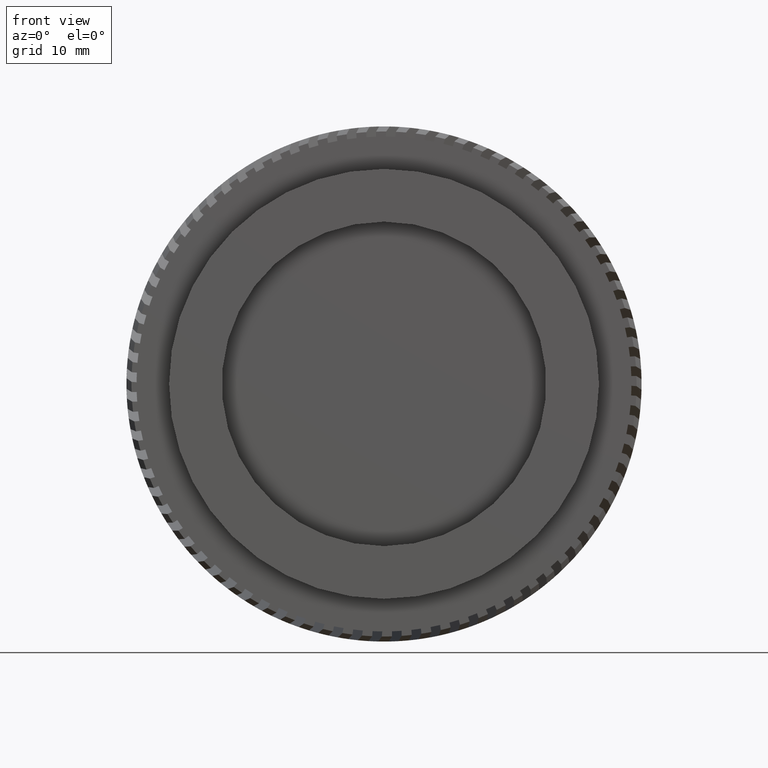
[diagram: clean part render]
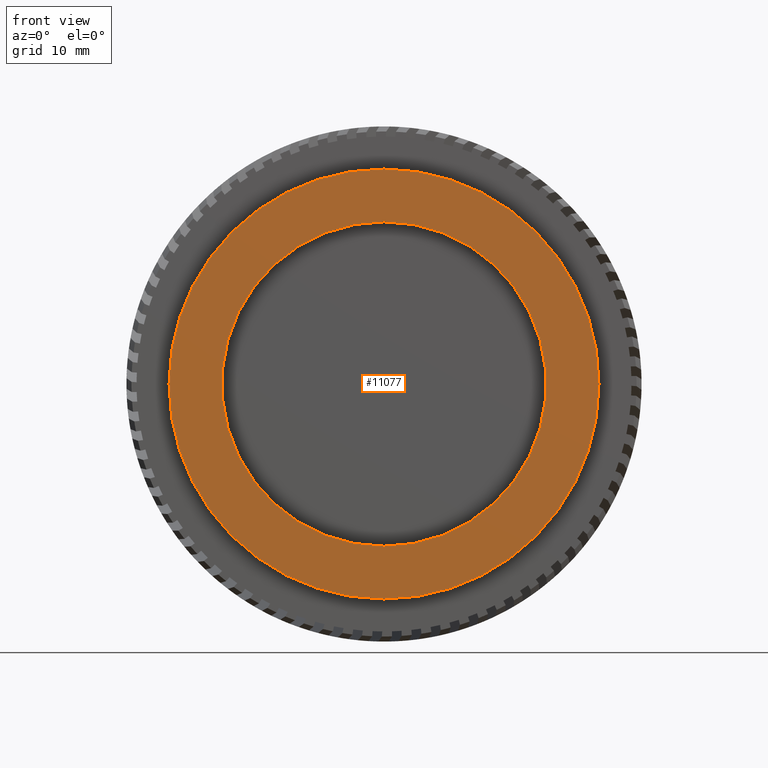
[diagram: same view with one face highlighted and labeled with its STEP entity id]
A machine part, front view. The second image highlights one B-rep face of the part: STEP entity #11077.
In plain terms, the highlighted planar face has unit normal (-0, 1, 0).
Its self-contained STEP definition (entity closure, byte-faithful):
#274 = FACE_OUTER_BOUND ( 'NONE', #15666, .T. ) ;
#1701 = DIRECTION ( 'NONE',  ( -0.0000000000000000000, 1.000000000000000000, -0.0000000000000000000 ) ) ;
#2042 = ORIENTED_EDGE ( 'NONE', *, *, #3539, .T. ) ;
#2178 = CIRCLE ( 'NONE', #17009, 16.00000000000000700 ) ;
#2255 = EDGE_CURVE ( 'NONE', #5459, #10008, #4892, .T. ) ;
#2292 = CARTESIAN_POINT ( 'NONE',  ( 0.0000000000000000000, 15.37125740523061900, 21.20000000000000600 ) ) ;
#2346 = AXIS2_PLACEMENT_3D ( 'NONE', #4565, #2925, #12357 ) ;
#2651 = ORIENTED_EDGE ( 'NONE', *, *, #2255, .T. ) ;
#2925 = DIRECTION ( 'NONE',  ( -0.0000000000000000000, 1.000000000000000000, -0.0000000000000000000 ) ) ;
#3439 = VERTEX_POINT ( 'NONE', #12113 ) ;
#3539 = EDGE_CURVE ( 'NONE', #10008, #5459, #2178, .T. ) ;
#4565 = CARTESIAN_POINT ( 'NONE',  ( 0.0000000000000000000, 15.37125740523061900, 0.0000000000000000000 ) ) ;
#4892 = CIRCLE ( 'NONE', #5120, 16.00000000000000700 ) ;
#5120 = AXIS2_PLACEMENT_3D ( 'NONE', #18340, #7313, #15232 ) ;
#5135 = AXIS2_PLACEMENT_3D ( 'NONE', #17415, #1701, #6337 ) ;
#5459 = VERTEX_POINT ( 'NONE', #19184 ) ;
#5546 = EDGE_CURVE ( 'NONE', #7995, #3439, #20120, .T. ) ;
#6337 = DIRECTION ( 'NONE',  ( 0.0000000000000000000, 0.0000000000000000000, 1.000000000000000000 ) ) ;
#6430 = EDGE_LOOP ( 'NONE', ( #2651, #2042 ) ) ;
#6689 = AXIS2_PLACEMENT_3D ( 'NONE', #15558, #18661, #7780 ) ;
#7313 = DIRECTION ( 'NONE',  ( -0.0000000000000000000, 1.000000000000000000, -0.0000000000000000000 ) ) ;
#7780 = DIRECTION ( 'NONE',  ( 0.0000000000000000000, 0.0000000000000000000, 1.000000000000000000 ) ) ;
#7995 = VERTEX_POINT ( 'NONE', #2292 ) ;
#8048 = PLANE ( 'NONE',  #6689 ) ;
#9027 = FACE_BOUND ( 'NONE', #6430, .T. ) ;
#10008 = VERTEX_POINT ( 'NONE', #12209 ) ;
#10915 = DIRECTION ( 'NONE',  ( -0.0000000000000000000, 1.000000000000000000, -0.0000000000000000000 ) ) ;
#11077 = ADVANCED_FACE ( 'NONE', ( #274, #9027 ), #8048, .F. ) ;
#11607 = EDGE_CURVE ( 'NONE', #3439, #7995, #12707, .T. ) ;
#12113 = CARTESIAN_POINT ( 'NONE',  ( 2.596251214192389600E-015, 15.37125740523061900, -21.20000000000000600 ) ) ;
#12209 = CARTESIAN_POINT ( 'NONE',  ( 1.959434878635766300E-015, 15.37125740523061900, -16.00000000000000700 ) ) ;
#12357 = DIRECTION ( 'NONE',  ( 0.0000000000000000000, 0.0000000000000000000, 1.000000000000000000 ) ) ;
#12707 = CIRCLE ( 'NONE', #5135, 21.20000000000000600 ) ;
#14229 = ORIENTED_EDGE ( 'NONE', *, *, #11607, .F. ) ;
#15232 = DIRECTION ( 'NONE',  ( 0.0000000000000000000, 0.0000000000000000000, 1.000000000000000000 ) ) ;
#15558 = CARTESIAN_POINT ( 'NONE',  ( 16.00000000000000700, 15.37125740523061700, 0.0000000000000000000 ) ) ;
#15666 = EDGE_LOOP ( 'NONE', ( #15918, #14229 ) ) ;
#15918 = ORIENTED_EDGE ( 'NONE', *, *, #5546, .F. ) ;
#17009 = AXIS2_PLACEMENT_3D ( 'NONE', #17168, #10915, #18535 ) ;
#17168 = CARTESIAN_POINT ( 'NONE',  ( 0.0000000000000000000, 15.37125740523061900, 0.0000000000000000000 ) ) ;
#17415 = CARTESIAN_POINT ( 'NONE',  ( 0.0000000000000000000, 15.37125740523061900, 0.0000000000000000000 ) ) ;
#18340 = CARTESIAN_POINT ( 'NONE',  ( 0.0000000000000000000, 15.37125740523061900, 0.0000000000000000000 ) ) ;
#18535 = DIRECTION ( 'NONE',  ( 0.0000000000000000000, 0.0000000000000000000, 1.000000000000000000 ) ) ;
#18661 = DIRECTION ( 'NONE',  ( -0.0000000000000000000, 1.000000000000000000, 0.0000000000000000000 ) ) ;
#19184 = CARTESIAN_POINT ( 'NONE',  ( 0.0000000000000000000, 15.37125740523061900, 16.00000000000000700 ) ) ;
#20120 = CIRCLE ( 'NONE', #2346, 21.20000000000000600 ) ;